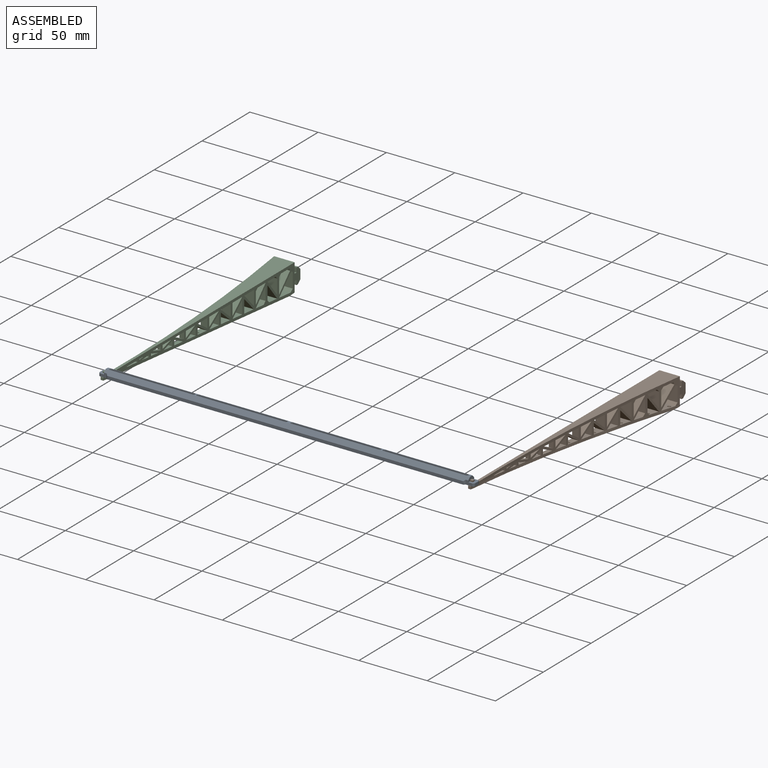
[diagram: assembled view]
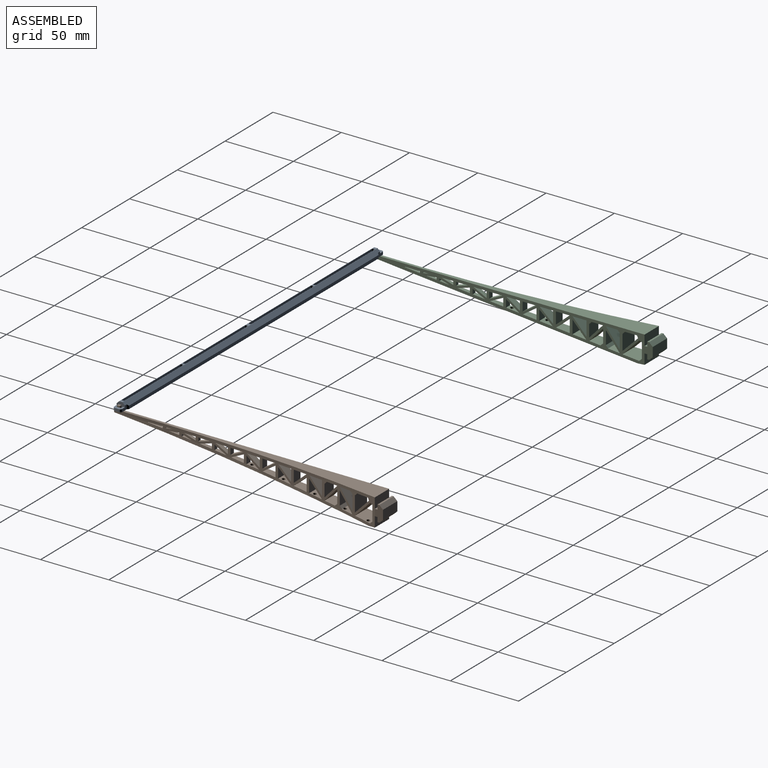
[diagram: assembled view, second angle]
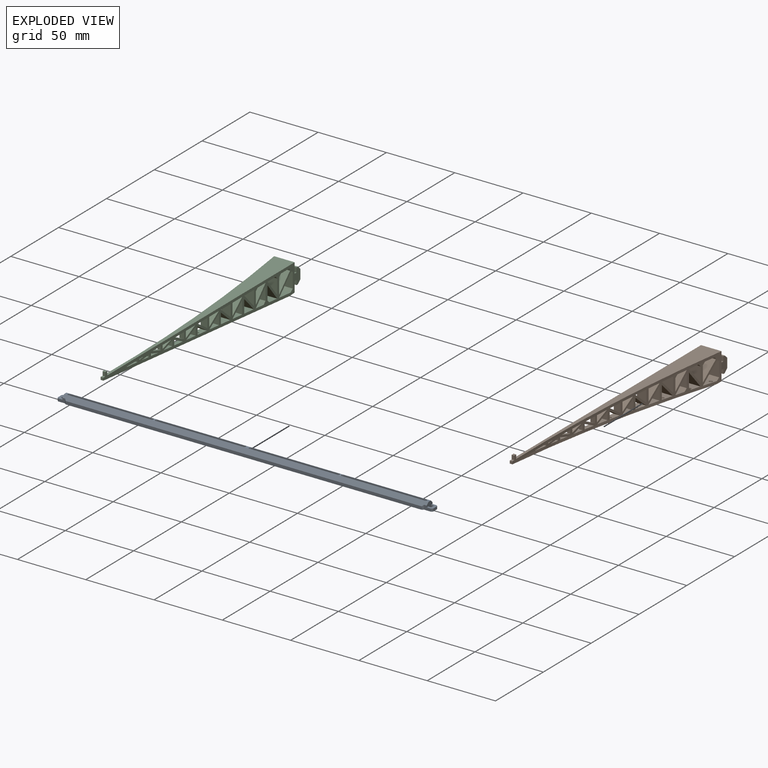
[diagram: exploded view]
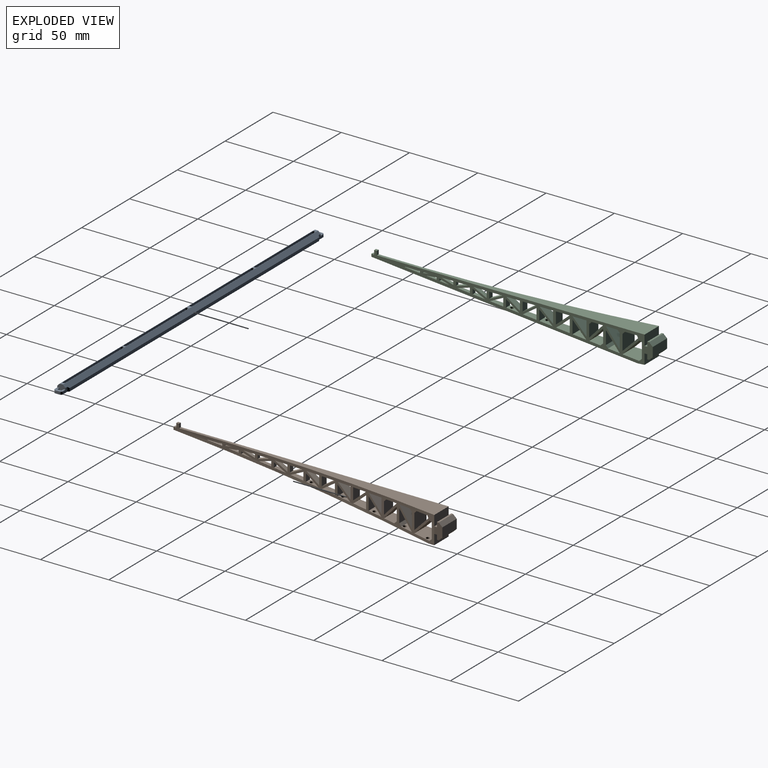
[diagram: exploded view, second angle]
ASSEMBLY  parts=3 mates=2
PART A: 50 faces, bbox 275x7.9x5 mm
  f0: plane 2.1x2mm, normal (0,1,0), area 4.2mm2, adj f1,f41,f43,f44
  f1: plane 3x2mm, normal (1,0,0), area 6mm2, adj f0,f2,f43,f44
  f2: plane 2.1x2mm, normal (0,-1,0), area 4.2mm2, adj f1,f41,f43,f44
  f3: plane 4.6x3.2mm, normal (0,-1,0), area 11.6mm2, adj f6,f8,f25,f41,f43,f44
  f4: plane 4.6x3.2mm, normal (0,1,0), area 11.6mm2, adj f5,f7,f35,f41,f43,f44
  f5: cylinder r=1.5mm len=2mm, axis (0,0,-1), area 4.7mm2, adj f4,f36,f43,f44
  f6: cylinder r=1.5mm len=2mm, axis (0,0,-1), area 4.7mm2, adj f3,f36,f43,f44
  f7: plane 266.8x2.75mm, normal (0,0.71,0.71), area 1031mm2, adj f4,f9,f10,f32,f33,f34,f35,f41
  f8: plane 266.8x2.75mm, normal (0,-0.71,0.71), area 1031mm2, adj f3,f9,f10,f25,f26,f27,f28,f41
  f9: plane 266.8x2.4mm, normal (0,0,1), area 127.9mm2, adj f7,f8,f10,f13,f14,f15,f16,f17
  f10: plane 6x5mm, normal (1,0,0), area 20.8mm2, adj f7,f8,f9,f11,f28,f32,f42,f43
  f11: plane 2.1x2mm, normal (0,-1,0), area 4.2mm2, adj f10,f12,f43,f45
  f12: plane 3x2mm, normal (-1,0,0), area 6mm2, adj f11,f42,f43,f45
  f13: plane 64.31x4.25mm, normal (0,-1,0), area 273.3mm2, adj f9,f14,f37,f49
  f14: cylinder r=1mm len=4.25mm, axis (0,0,-1), area 13.4mm2, adj f9,f13,f15,f49
  f15: plane 64.31x4.25mm, normal (0,1,0), area 273.3mm2, adj f9,f14,f37,f49
  f16: plane 60.65x4.25mm, normal (0,-1,0), area 257.8mm2, adj f9,f17,f38,f48
  f17: cylinder r=1mm len=4.25mm, axis (0,0,-1), area 13.4mm2, adj f9,f16,f18,f48
  f18: plane 60.65x4.25mm, normal (0,1,0), area 257.8mm2, adj f9,f17,f38,f48
  f19: cylinder r=1mm len=4.25mm, axis (0,0,-1), area 13.4mm2, adj f9,f20,f39,f47
  f20: plane 64.31x4.25mm, normal (0,-1,0), area 273.3mm2, adj f9,f19,f21,f47
  f21: cylinder r=1mm len=4.25mm, axis (0,0,-1), area 13.4mm2, adj f9,f20,f39,f47
  f22: plane 60.65x4.25mm, normal (0,1,0), area 257.8mm2, adj f9,f23,f40,f46
  f23: cylinder r=1mm len=4.25mm, axis (0,0,-1), area 13.4mm2, adj f9,f22,f24,f46
  f24: plane 60.65x4.25mm, normal (0,-1,0), area 257.8mm2, adj f9,f23,f40,f46
  f25: plane 3.2x0.95mm, normal (-0.71,-0.71,0), area 3.7mm2, adj f3,f8,f26,f43
  f26: plane 260.9x2.25mm, normal (0,-1,0), area 587mm2, adj f8,f25,f27,f43
  f27: plane 3.2x0.95mm, normal (0.71,-0.71,0), area 3.7mm2, adj f8,f26,f28,f43
  f28: plane 4.6x3.2mm, normal (0,-1,0), area 11.6mm2, adj f8,f10,f27,f29,f43,f45
  f29: cylinder r=1.5mm len=2mm, axis (0,0,-1), area 4.7mm2, adj f28,f30,f43,f45
  f30: plane 3x2mm, normal (1,0,0), area 6mm2, adj f29,f31,f43,f45
  f31: cylinder r=1.5mm len=2mm, axis (0,0,-1), area 4.7mm2, adj f30,f32,f43,f45
  f32: plane 4.6x3.2mm, normal (0,1,0), area 11.6mm2, adj f7,f10,f31,f33,f43,f45
  f33: plane 3.2x0.95mm, normal (0.71,0.71,0), area 3.7mm2, adj f7,f32,f34,f43
  f34: plane 260.9x2.25mm, normal (0,1,0), area 587mm2, adj f7,f33,f35,f43
  f35: plane 3.2x0.95mm, normal (-0.71,0.71,0), area 3.7mm2, adj f4,f7,f34,f43
  f36: plane 3x2mm, normal (-1,0,0), area 6mm2, adj f5,f6,f43,f44
  f37: cylinder r=1mm len=4.25mm, axis (0,0,-1), area 13.4mm2, adj f9,f13,f15,f49
  f38: cylinder r=1mm len=4.25mm, axis (0,0,-1), area 13.4mm2, adj f9,f16,f18,f48
  f39: plane 64.31x4.25mm, normal (0,1,0), area 273.3mm2, adj f9,f19,f21,f47
  f40: cylinder r=1mm len=4.25mm, axis (0,0,-1), area 13.4mm2, adj f9,f22,f24,f46
  f41: plane 6x5mm, normal (-1,0,0), area 20.8mm2, adj f0,f2,f3,f4,f7,f8,f9,f43
  f42: plane 2.1x2mm, normal (0,1,0), area 4.2mm2, adj f10,f12,f43,f45
  f43: plane 275x7.9mm, normal (0,0,-1), area 2133mm2, adj f0,f1,f2,f3,f4,f5,f6,f10
  f44: plane 6x4.1mm, normal (0,0,1), area 17.3mm2, adj f0,f1,f2,f3,f4,f5,f6,f36
  f45: plane 6x4.1mm, normal (0,0,1), area 17.3mm2, adj f10,f11,f12,f28,f29,f30,f31,f32
  f46: plane 62.65x2mm, normal (0,0,1), area 124.4mm2, adj f22,f23,f24,f40
  f47: plane 66.31x2mm, normal (0,0,1), area 131.8mm2, adj f19,f20,f21,f39
  f48: plane 62.65x2mm, normal (0,0,1), area 124.4mm2, adj f16,f17,f18,f38
  f49: plane 66.31x2mm, normal (0,0,1), area 131.8mm2, adj f13,f14,f15,f37
PART B: 120 faces, bbox 23.4x206x15 mm
  f0: plane 2x2mm, normal (0,1,0), area 4mm2, adj f71,f72,f105,f106
  f1: plane 2x1.96mm, normal (1,0,0), area 3.9mm2, adj f57,f73,f105,f106
  f2: plane 11.78x6mm, normal (0,0,1), area 50.2mm2, adj f60,f61,f62,f63,f64,f65,f66,f67
  f3: plane 12.42x8.49mm, normal (1,-0.09,0), area 96.2mm2, adj f4,f105,f106,f109,f115
  f4: plane 12.69x12.42mm, normal (-0.62,0.78,0), area 190.8mm2, adj f3,f104,f105,f106
  f5: plane 10.85x8.34mm, normal (-1,0,0), area 86.2mm2, adj f78,f105,f106,f107
  f6: plane 9.64x8.96mm, normal (0,-1,0), area 86.4mm2, adj f78,f105,f106,f107
  f7: plane 12.69x0.02mm, normal (0,-1,0), area 0.2mm2, adj f8,f79,f105,f106
  f8: plane 14.41x12.18mm, normal (1,-0.09,0), area 160.8mm2, adj f7,f105,f106,f112,f118
  f9: plane 14.7x11.11mm, normal (0,1,0), area 163.3mm2, adj f105,f106,f112,f114
  f10: plane 9.86x5.81mm, normal (-1,0,0), area 53.4mm2, adj f11,f80,f105,f106
  f11: plane 6.75x5.04mm, normal (0,-1,0), area 34mm2, adj f10,f80,f105,f106
  f12: plane 2.06x1.62mm, normal (0,1,0), area 3.3mm2, adj f13,f81,f105,f106
  f13: plane 7.64x2.06mm, normal (-0.99,-0.12,0), area 15.3mm2, adj f12,f81,f105,f106
  f14: plane 10.02x5.84mm, normal (1,-0.09,0), area 54.7mm2, adj f15,f82,f105,f106
  f15: plane 7.8x5.84mm, normal (0,1,0), area 45.5mm2, adj f14,f82,f105,f106
  f16: plane 10.78x9.41mm, normal (0,1,0), area 101.5mm2, adj f17,f83,f105,f106
  f17: plane 10.16x9.41mm, normal (-1,0,0), area 89.9mm2, adj f16,f83,f105,f106
  f18: plane 4.8x1.96mm, normal (-1,0,0), area 9.2mm2, adj f19,f84,f105,f106
  f19: plane 1.89x0.57mm, normal (0,-1,0), area 1.1mm2, adj f18,f84,f105,f106
  f20: plane 7.5x2.3mm, normal (1,-0.09,0), area 16.5mm2, adj f21,f85,f105,f106
  f21: plane 7.5x2.3mm, normal (-0.96,0.29,0), area 17.2mm2, adj f20,f85,f105,f106
  f22: plane 7.72x6mm, normal (0,-1,0), area 46.3mm2, adj f23,f86,f105,f106
  f23: plane 9.91x6.88mm, normal (1,-0.09,0), area 59.1mm2, adj f22,f86,f105,f106,f119
  f24: plane 9.65x6.6mm, normal (-0.83,0.56,0), area 52.9mm2, adj f25,f87,f105,f106
  f25: plane 5.69x4.2mm, normal (0,-1,0), area 23.9mm2, adj f24,f87,f105,f106
  f26: plane 5.76x4.08mm, normal (0,1,0), area 23.5mm2, adj f27,f88,f105,f106
  f27: plane 9.77x4.84mm, normal (-0.9,-0.44,0), area 41.3mm2, adj f26,f88,f105,f106
  f28: plane 10.61x8.2mm, normal (1,-0.09,0), area 83.3mm2, adj f89,f105,f106,f108
  f29: plane 10.85x9.84mm, normal (0,1,0), area 106.8mm2, adj f30,f105,f106,f108
  f30: plane 10.86x10.82mm, normal (-0.69,-0.73,0), area 152.1mm2, adj f29,f89,f105,f106
  f31: plane 4.71x3.39mm, normal (0,1,0), area 15.9mm2, adj f32,f90,f105,f106
  f32: plane 9.5x3.39mm, normal (-1,0,0), area 30mm2, adj f31,f90,f105,f106
  f33: plane 9.86x4.89mm, normal (-1,0,0), area 44.9mm2, adj f34,f91,f105,f106
  f34: plane 9.86x6.75mm, normal (0.83,-0.56,0), area 54.4mm2, adj f33,f91,f105,f106
  f35: plane 14.18x8.81mm, normal (-1,0,0), area 119.5mm2, adj f105,f106,f111,f113
  f36: plane 12.69x11.37mm, normal (0,-1,0), area 144.3mm2, adj f92,f105,f106,f111
  f37: plane 12.42x10.98mm, normal (0,1,0), area 136.4mm2, adj f93,f105,f106,f110
  f38: plane 12.18x8.37mm, normal (-1,0,0), area 97.4mm2, adj f39,f105,f106,f110
  f39: plane 11.1x0.05mm, normal (0,-1,0), area 0.6mm2, adj f38,f93,f105,f106
  f40: plane 10.05x8.08mm, normal (-1,0,0), area 76.1mm2, adj f41,f94,f105,f106
  f41: plane 8.77x7.09mm, normal (0,-1,0), area 62.2mm2, adj f40,f94,f105,f106
  f42: plane 8.77x6.9mm, normal (0,1,0), area 60.5mm2, adj f43,f95,f105,f106
  f43: plane 10.05x6.9mm, normal (-1,0,0), area 64.8mm2, adj f42,f95,f105,f106
  f44: plane 10.68x10.06mm, normal (-0.69,0.73,0), area 129.7mm2, adj f45,f96,f105,f106
  f45: plane 9.73x8.3mm, normal (0,-1,0), area 80.7mm2, adj f44,f96,f105,f106
  f46: plane 9.83x8.09mm, normal (0,1,0), area 79.5mm2, adj f47,f97,f105,f106
  f47: plane 10.16x8.87mm, normal (-0.75,-0.66,0), area 102.3mm2, adj f46,f97,f105,f106
  f48: plane 8.63x2.65mm, normal (0.96,-0.29,0), area 20.3mm2, adj f49,f98,f105,f106
  f49: plane 2.65x2.38mm, normal (0,1,0), area 6.3mm2, adj f48,f98,f105,f106
  f50: plane 11.19x1.86mm, normal (-1,0,0), area 20.3mm2, adj f51,f99,f105,f106
  f51: plane 1.79x0.29mm, normal (0,-1,0), area 0.5mm2, adj f50,f52,f105,f106
  f52: plane 11.19x1.86mm, normal (1,-0.09,0), area 20.4mm2, adj f51,f99,f105,f106
  f53: plane 9.5x4.71mm, normal (0.9,0.44,0), area 39.8mm2, adj f54,f100,f105,f106
  f54: plane 9.5x4.04mm, normal (-1,0,0), area 35.7mm2, adj f53,f100,f105,f106
  f55: plane 8.63x2.76mm, normal (-1,0,0), area 22.4mm2, adj f56,f101,f105,f106
  f56: plane 2.65x2.44mm, normal (0,-1,0), area 6.5mm2, adj f55,f101,f105,f106
  f57: plane 3x1.93mm, normal (0,-1,0), area 5.8mm2, adj f1,f58,f105,f106
  f58: plane 196x15mm, normal (1,0,0), area 1131.9mm2, adj f57,f59,f105,f106
  f59: plane 15x7.55mm, normal (0,-1,0), area 113.3mm2, adj f58,f60,f105,f106
  f60: plane 15x2mm, normal (1,0,0), area 30mm2, adj f2,f59,f61,f105
  f61: plane 15x3.44mm, normal (0,1,0), area 51.6mm2, adj f2,f60,f62,f105
  f62: plane 15x1.3mm, normal (1,0,0), area 19.5mm2, adj f2,f61,f63,f105
  f63: plane 15x2.7mm, normal (0.74,-0.68,0), area 55.1mm2, adj f2,f62,f64,f105
  f64: plane 15x6.8mm, normal (0,-1,0), area 102mm2, adj f2,f63,f65,f105
  f65: plane 15x2.7mm, normal (-0.74,-0.68,0), area 55.1mm2, adj f2,f64,f66,f105
  f66: plane 15x1.3mm, normal (-1,0,0), area 19.5mm2, adj f2,f65,f67,f105
  f67: plane 15x3.44mm, normal (0,1,0), area 51.6mm2, adj f2,f66,f68,f105
  f68: plane 15x2mm, normal (-1,0,0), area 30mm2, adj f2,f67,f69,f105
  f69: plane 15x7.55mm, normal (0,-1,0), area 113.3mm2, adj f68,f70,f105,f106
  f70: plane 15x4.98mm, normal (-1,-0.08,0), area 73.2mm2, adj f69,f71,f105,f106
  f71: plane 195.02x18.4mm, normal (-1,0.09,0), area 1047mm2, adj f0,f70,f105,f106,f115,f116,f117,f118
  f72: plane 2x2mm, normal (1,0,0), area 4mm2, adj f0,f73,f105,f106
  f73: plane 3x1.96mm, normal (0,1,0), area 5.9mm2, adj f1,f72,f105,f106
  f74: plane 9.1x4.51mm, normal (-0.9,0.44,0), area 31.6mm2, adj f75,f102,f105,f106
  f75: plane 3.65x2.9mm, normal (0,-1,0), area 10.6mm2, adj f74,f102,f105,f106
  f76: plane 3.7x2.82mm, normal (0,1,0), area 10.4mm2, adj f77,f103,f105,f106
  f77: plane 9.23x2.83mm, normal (-0.96,-0.29,0), area 25.5mm2, adj f76,f103,f105,f106
  f78: plane 10.85x10.79mm, normal (0.69,0.73,0), area 151.7mm2, adj f5,f6,f105,f106
  f79: plane 14.45x12.48mm, normal (-0.71,-0.71,0), area 238.6mm2, adj f7,f105,f106,f114
  f80: plane 9.86x6.75mm, normal (0.83,0.56,0), area 64.7mm2, adj f10,f11,f105,f106
  f81: plane 7.64x2.06mm, normal (1,-0.09,0), area 15.2mm2, adj f12,f13,f105,f106
  f82: plane 10.02x6.86mm, normal (-0.83,-0.56,0), area 66mm2, adj f14,f15,f105,f106
  f83: plane 10.79x10.16mm, normal (0.69,-0.73,0), area 131.1mm2, adj f16,f17,f105,f106
  f84: plane 4.8x1.96mm, normal (0.99,0.12,0), area 9.3mm2, adj f18,f19,f105,f106
  f85: plane 2.1x1.59mm, normal (0,-1,0), area 3.3mm2, adj f20,f21,f105,f106
  f86: plane 9.91x8.65mm, normal (-0.75,0.66,0), area 84.6mm2, adj f22,f23,f105,f106
  f87: plane 9.65x4.86mm, normal (1,-0.09,0), area 38.9mm2, adj f24,f25,f105,f106,f117
  f88: plane 9.77x4.08mm, normal (1,-0.09,0), area 37.2mm2, adj f26,f27,f105,f106
  f89: plane 9.64x0.06mm, normal (0,-1,0), area 0.6mm2, adj f28,f30,f105,f106
  f90: plane 9.5x4.71mm, normal (0.9,-0.44,0), area 33.4mm2, adj f31,f32,f105,f106
  f91: plane 6.75x4.89mm, normal (0,1,0), area 33mm2, adj f33,f34,f105,f106
  f92: plane 14.29x11.43mm, normal (0.71,0.71,0), area 217.3mm2, adj f36,f105,f106,f113
  f93: plane 12.76x12.43mm, normal (0.62,-0.78,0), area 191.9mm2, adj f37,f39,f105,f106
  f94: plane 10.05x8.77mm, normal (0.75,0.66,0), area 101mm2, adj f40,f41,f105,f106
  f95: plane 10.05x8.77mm, normal (0.75,-0.66,0), area 86mm2, adj f42,f43,f105,f106
  f96: plane 10.06x9.4mm, normal (1,-0.09,0), area 84.4mm2, adj f44,f45,f105,f106,f116
  f97: plane 10.16x8.09mm, normal (1,-0.09,0), area 77.4mm2, adj f46,f47,f105,f106
  f98: plane 8.63x2.38mm, normal (-1,0,0), area 19.4mm2, adj f48,f49,f105,f106
  f99: plane 1.86x1.35mm, normal (0,1,0), area 2.5mm2, adj f50,f52,f105,f106
  f100: plane 4.71x3.49mm, normal (0,-1,0), area 16.4mm2, adj f53,f54,f105,f106
  f101: plane 8.63x2.76mm, normal (0.96,0.29,0), area 23.4mm2, adj f55,f56,f105,f106
  f102: plane 9.1x3.33mm, normal (1,-0.09,0), area 28.5mm2, adj f74,f75,f105,f106
  f103: plane 9.23x2.82mm, normal (1,-0.09,0), area 24.5mm2, adj f76,f77,f105,f106
  f104: plane 11.1x10.07mm, normal (0,-1,0), area 111.8mm2, adj f4,f105,f106,f109
  f105: plane 206x23.4mm, normal (0,0,-1), area 1352.8mm2, adj f0,f1,f3,f4,f5,f6,f7,f8
  f106: cylinder r=1200mm len=200mm, axis (1,0,0), area 1307.9mm2, adj f0,f1,f2,f3,f4,f5,f6,f7
  f107: plane 9.85x1.82mm, normal (-0.71,-0.71,0), area 25.1mm2, adj f5,f6,f105,f106
  f108: plane 10.85x1.99mm, normal (0.74,0.67,0), area 28.9mm2, adj f28,f29,f105,f106
  f109: plane 11.31x1.81mm, normal (0.67,-0.74,0), area 27.4mm2, adj f3,f104,f105,f106,f115
  f110: plane 12.42x1.82mm, normal (-0.71,0.71,0), area 31.7mm2, adj f37,f38,f105,f106
  f111: plane 12.94x1.82mm, normal (-0.71,-0.71,0), area 33mm2, adj f35,f36,f105,f106
  f112: plane 14.7x1.99mm, normal (0.74,0.67,0), area 39.2mm2, adj f8,f9,f105,f106
  f113: plane 14.29x1.76mm, normal (-0.38,0.92,0), area 27.1mm2, adj f35,f92,f105,f106
  f114: plane 14.7x1.76mm, normal (-0.92,0.38,0), area 27.8mm2, adj f9,f79,f105,f106
  f115: cylinder r=1.25mm len=2.68mm, axis (-1,0.09,0), area 15.8mm2, adj f3,f71,f109
  f116: cylinder r=1.25mm len=2.68mm, axis (-1,0.09,0), area 15.7mm2, adj f71,f96
  f117: cylinder r=1.25mm len=2.68mm, axis (-1,0.09,0), area 15.7mm2, adj f71,f87
  f118: cylinder r=1.25mm len=2.68mm, axis (-1,0.09,0), area 15.7mm2, adj f8,f71
  f119: cylinder r=1.25mm len=2.68mm, axis (-1,0.09,0), area 15.7mm2, adj f23,f71
PART C: 120 faces, bbox 23.4x206x15 mm
  f0: plane 2x2mm, normal (0,1,0), area 4mm2, adj f71,f72,f105,f106
  f1: plane 2x1.96mm, normal (-1,0,0), area 3.9mm2, adj f57,f73,f105,f106
  f2: plane 11.78x6mm, normal (0,0,1), area 50.2mm2, adj f60,f61,f62,f63,f64,f65,f66,f67
  f3: plane 12.42x8.49mm, normal (-1,-0.09,0), area 96.2mm2, adj f4,f105,f106,f109,f115
  f4: plane 12.69x12.42mm, normal (0.62,0.78,0), area 190.8mm2, adj f3,f104,f105,f106
  f5: plane 10.85x8.34mm, normal (1,0,0), area 86.2mm2, adj f78,f105,f106,f107
  f6: plane 9.64x8.96mm, normal (0,-1,0), area 86.4mm2, adj f78,f105,f106,f107
  f7: plane 12.69x0.02mm, normal (0,-1,0), area 0.2mm2, adj f8,f79,f105,f106
  f8: plane 14.41x12.18mm, normal (-1,-0.09,0), area 160.8mm2, adj f7,f105,f106,f112,f118
  f9: plane 14.7x11.11mm, normal (0,1,0), area 163.3mm2, adj f105,f106,f112,f114
  f10: plane 9.86x5.81mm, normal (1,0,0), area 53.4mm2, adj f11,f80,f105,f106
  f11: plane 6.75x5.04mm, normal (0,-1,0), area 34mm2, adj f10,f80,f105,f106
  f12: plane 2.06x1.62mm, normal (0,1,0), area 3.3mm2, adj f13,f81,f105,f106
  f13: plane 7.64x2.06mm, normal (0.99,-0.12,0), area 15.3mm2, adj f12,f81,f105,f106
  f14: plane 10.02x5.84mm, normal (-1,-0.09,0), area 54.7mm2, adj f15,f82,f105,f106
  f15: plane 7.8x5.84mm, normal (0,1,0), area 45.5mm2, adj f14,f82,f105,f106
  f16: plane 10.78x9.41mm, normal (0,1,0), area 101.5mm2, adj f17,f83,f105,f106
  f17: plane 10.16x9.41mm, normal (1,0,0), area 89.9mm2, adj f16,f83,f105,f106
  f18: plane 4.8x1.96mm, normal (1,0,0), area 9.2mm2, adj f19,f84,f105,f106
  f19: plane 1.89x0.57mm, normal (0,-1,0), area 1.1mm2, adj f18,f84,f105,f106
  f20: plane 7.5x2.3mm, normal (-1,-0.09,0), area 16.5mm2, adj f21,f85,f105,f106
  f21: plane 7.5x2.3mm, normal (0.96,0.29,0), area 17.2mm2, adj f20,f85,f105,f106
  f22: plane 7.72x6mm, normal (0,-1,0), area 46.3mm2, adj f23,f86,f105,f106
  f23: plane 9.91x6.88mm, normal (-1,-0.09,0), area 59.1mm2, adj f22,f86,f105,f106,f119
  f24: plane 9.65x6.6mm, normal (0.83,0.56,0), area 52.9mm2, adj f25,f87,f105,f106
  f25: plane 5.69x4.2mm, normal (0,-1,0), area 23.9mm2, adj f24,f87,f105,f106
  f26: plane 5.76x4.08mm, normal (0,1,0), area 23.5mm2, adj f27,f88,f105,f106
  f27: plane 9.77x4.84mm, normal (0.9,-0.44,0), area 41.3mm2, adj f26,f88,f105,f106
  f28: plane 10.61x8.2mm, normal (-1,-0.09,0), area 83.3mm2, adj f89,f105,f106,f108
  f29: plane 10.85x9.84mm, normal (0,1,0), area 106.8mm2, adj f30,f105,f106,f108
  f30: plane 10.86x10.82mm, normal (0.69,-0.73,0), area 152.1mm2, adj f29,f89,f105,f106
  f31: plane 4.71x3.39mm, normal (0,1,0), area 15.9mm2, adj f32,f90,f105,f106
  f32: plane 9.5x3.39mm, normal (1,0,0), area 30mm2, adj f31,f90,f105,f106
  f33: plane 9.86x4.89mm, normal (1,0,0), area 44.9mm2, adj f34,f91,f105,f106
  f34: plane 9.86x6.75mm, normal (-0.83,-0.56,0), area 54.4mm2, adj f33,f91,f105,f106
  f35: plane 14.18x8.81mm, normal (1,0,0), area 119.5mm2, adj f105,f106,f111,f113
  f36: plane 12.69x11.37mm, normal (0,-1,0), area 144.3mm2, adj f92,f105,f106,f111
  f37: plane 12.42x10.98mm, normal (0,1,0), area 136.4mm2, adj f93,f105,f106,f110
  f38: plane 12.18x8.37mm, normal (1,0,0), area 97.4mm2, adj f39,f105,f106,f110
  f39: plane 11.1x0.05mm, normal (0,-1,0), area 0.6mm2, adj f38,f93,f105,f106
  f40: plane 10.05x8.08mm, normal (1,0,0), area 76.1mm2, adj f41,f94,f105,f106
  f41: plane 8.77x7.09mm, normal (0,-1,0), area 62.2mm2, adj f40,f94,f105,f106
  f42: plane 8.77x6.9mm, normal (0,1,0), area 60.5mm2, adj f43,f95,f105,f106
  f43: plane 10.05x6.9mm, normal (1,0,0), area 64.8mm2, adj f42,f95,f105,f106
  f44: plane 10.68x10.06mm, normal (0.69,0.73,0), area 129.7mm2, adj f45,f96,f105,f106
  f45: plane 9.73x8.3mm, normal (0,-1,0), area 80.7mm2, adj f44,f96,f105,f106
  f46: plane 9.83x8.09mm, normal (0,1,0), area 79.5mm2, adj f47,f97,f105,f106
  f47: plane 10.16x8.87mm, normal (0.75,-0.66,0), area 102.3mm2, adj f46,f97,f105,f106
  f48: plane 8.63x2.65mm, normal (-0.96,-0.29,0), area 20.3mm2, adj f49,f98,f105,f106
  f49: plane 2.65x2.38mm, normal (0,1,0), area 6.3mm2, adj f48,f98,f105,f106
  f50: plane 11.19x1.86mm, normal (1,0,0), area 20.3mm2, adj f51,f99,f105,f106
  f51: plane 1.79x0.29mm, normal (0,-1,0), area 0.5mm2, adj f50,f52,f105,f106
  f52: plane 11.19x1.86mm, normal (-1,-0.09,0), area 20.4mm2, adj f51,f99,f105,f106
  f53: plane 9.5x4.71mm, normal (-0.9,0.44,0), area 39.8mm2, adj f54,f100,f105,f106
  f54: plane 9.5x4.04mm, normal (1,0,0), area 35.7mm2, adj f53,f100,f105,f106
  f55: plane 8.63x2.76mm, normal (1,0,0), area 22.4mm2, adj f56,f101,f105,f106
  f56: plane 2.65x2.44mm, normal (0,-1,0), area 6.5mm2, adj f55,f101,f105,f106
  f57: plane 3x1.93mm, normal (0,-1,0), area 5.8mm2, adj f1,f58,f105,f106
  f58: plane 196x15mm, normal (-1,0,0), area 1131.9mm2, adj f57,f59,f105,f106
  f59: plane 15x7.55mm, normal (0,-1,0), area 113.2mm2, adj f58,f60,f105,f106
  f60: plane 15x2mm, normal (-1,0,0), area 30mm2, adj f2,f59,f61,f105
  f61: plane 15x3.44mm, normal (0,1,0), area 51.6mm2, adj f2,f60,f62,f105
  f62: plane 15x1.3mm, normal (-1,0,0), area 19.5mm2, adj f2,f61,f63,f105
  f63: plane 15x2.7mm, normal (-0.74,-0.68,0), area 55.1mm2, adj f2,f62,f64,f105
  f64: plane 15x6.8mm, normal (0,-1,0), area 102mm2, adj f2,f63,f65,f105
  f65: plane 15x2.7mm, normal (0.74,-0.68,0), area 55.1mm2, adj f2,f64,f66,f105
  f66: plane 15x1.3mm, normal (1,0,0), area 19.5mm2, adj f2,f65,f67,f105
  f67: plane 15x3.44mm, normal (0,1,0), area 51.6mm2, adj f2,f66,f68,f105
  f68: plane 15x2mm, normal (1,0,0), area 30mm2, adj f2,f67,f69,f105
  f69: plane 15x7.55mm, normal (0,-1,0), area 113.2mm2, adj f68,f70,f105,f106
  f70: plane 15x4.98mm, normal (1,-0.08,0), area 73.2mm2, adj f69,f71,f105,f106
  f71: plane 195.02x18.4mm, normal (1,0.09,0), area 1047mm2, adj f0,f70,f105,f106,f115,f116,f117,f118
  f72: plane 2x2mm, normal (-1,0,0), area 4mm2, adj f0,f73,f105,f106
  f73: plane 3x1.96mm, normal (0,1,0), area 5.9mm2, adj f1,f72,f105,f106
  f74: plane 9.1x4.51mm, normal (0.9,0.44,0), area 31.6mm2, adj f75,f102,f105,f106
  f75: plane 3.65x2.9mm, normal (0,-1,0), area 10.6mm2, adj f74,f102,f105,f106
  f76: plane 3.7x2.82mm, normal (0,1,0), area 10.4mm2, adj f77,f103,f105,f106
  f77: plane 9.23x2.83mm, normal (0.96,-0.29,0), area 25.5mm2, adj f76,f103,f105,f106
  f78: plane 10.85x10.79mm, normal (-0.69,0.73,0), area 151.7mm2, adj f5,f6,f105,f106
  f79: plane 14.45x12.48mm, normal (0.71,-0.71,0), area 238.6mm2, adj f7,f105,f106,f114
  f80: plane 9.86x6.75mm, normal (-0.83,0.56,0), area 64.7mm2, adj f10,f11,f105,f106
  f81: plane 7.64x2.06mm, normal (-1,-0.09,0), area 15.2mm2, adj f12,f13,f105,f106
  f82: plane 10.02x6.86mm, normal (0.83,-0.56,0), area 66mm2, adj f14,f15,f105,f106
  f83: plane 10.79x10.16mm, normal (-0.69,-0.73,0), area 131.1mm2, adj f16,f17,f105,f106
  f84: plane 4.8x1.96mm, normal (-0.99,0.12,0), area 9.3mm2, adj f18,f19,f105,f106
  f85: plane 2.1x1.59mm, normal (0,-1,0), area 3.3mm2, adj f20,f21,f105,f106
  f86: plane 9.91x8.65mm, normal (0.75,0.66,0), area 84.6mm2, adj f22,f23,f105,f106
  f87: plane 9.65x4.86mm, normal (-1,-0.09,0), area 38.9mm2, adj f24,f25,f105,f106,f117
  f88: plane 9.77x4.08mm, normal (-1,-0.09,0), area 37.2mm2, adj f26,f27,f105,f106
  f89: plane 9.64x0.06mm, normal (0,-1,0), area 0.6mm2, adj f28,f30,f105,f106
  f90: plane 9.5x4.71mm, normal (-0.9,-0.44,0), area 33.4mm2, adj f31,f32,f105,f106
  f91: plane 6.75x4.89mm, normal (0,1,0), area 33mm2, adj f33,f34,f105,f106
  f92: plane 14.29x11.43mm, normal (-0.71,0.71,0), area 217.3mm2, adj f36,f105,f106,f113
  f93: plane 12.76x12.43mm, normal (-0.62,-0.78,0), area 191.9mm2, adj f37,f39,f105,f106
  f94: plane 10.05x8.77mm, normal (-0.75,0.66,0), area 101mm2, adj f40,f41,f105,f106
  f95: plane 10.05x8.77mm, normal (-0.75,-0.66,0), area 86mm2, adj f42,f43,f105,f106
  f96: plane 10.06x9.4mm, normal (-1,-0.09,0), area 84.4mm2, adj f44,f45,f105,f106,f116
  f97: plane 10.16x8.09mm, normal (-1,-0.09,0), area 77.4mm2, adj f46,f47,f105,f106
  f98: plane 8.63x2.38mm, normal (1,0,0), area 19.4mm2, adj f48,f49,f105,f106
  f99: plane 1.86x1.35mm, normal (0,1,0), area 2.5mm2, adj f50,f52,f105,f106
  f100: plane 4.71x3.49mm, normal (0,-1,0), area 16.4mm2, adj f53,f54,f105,f106
  f101: plane 8.63x2.76mm, normal (-0.96,0.29,0), area 23.4mm2, adj f55,f56,f105,f106
  f102: plane 9.1x3.33mm, normal (-1,-0.09,0), area 28.5mm2, adj f74,f75,f105,f106
  f103: plane 9.23x2.82mm, normal (-1,-0.09,0), area 24.5mm2, adj f76,f77,f105,f106
  f104: plane 11.1x10.07mm, normal (0,-1,0), area 111.8mm2, adj f4,f105,f106,f109
  f105: plane 206x23.4mm, normal (0,0,-1), area 1352.8mm2, adj f0,f1,f3,f4,f5,f6,f7,f8
  f106: cylinder r=1200mm len=200mm, axis (-1,0,0), area 1307.9mm2, adj f0,f1,f2,f3,f4,f5,f6,f7
  f107: plane 9.85x1.82mm, normal (0.71,-0.71,0), area 25.1mm2, adj f5,f6,f105,f106
  f108: plane 10.85x1.99mm, normal (-0.74,0.67,0), area 28.9mm2, adj f28,f29,f105,f106
  f109: plane 11.31x1.81mm, normal (-0.67,-0.74,0), area 27.4mm2, adj f3,f104,f105,f106,f115
  f110: plane 12.42x1.82mm, normal (0.71,0.71,0), area 31.7mm2, adj f37,f38,f105,f106
  f111: plane 12.94x1.82mm, normal (0.71,-0.71,0), area 33mm2, adj f35,f36,f105,f106
  f112: plane 14.7x1.99mm, normal (-0.74,0.67,0), area 39.2mm2, adj f8,f9,f105,f106
  f113: plane 14.29x1.76mm, normal (0.38,0.92,0), area 27.1mm2, adj f35,f92,f105,f106
  f114: plane 14.7x1.76mm, normal (0.92,0.38,0), area 27.8mm2, adj f9,f79,f105,f106
  f115: cylinder r=1.25mm len=2.68mm, axis (1,0.09,0), area 15.8mm2, adj f3,f71,f109
  f116: cylinder r=1.25mm len=2.68mm, axis (1,0.09,0), area 15.7mm2, adj f71,f96
  f117: cylinder r=1.25mm len=2.68mm, axis (1,0.09,0), area 15.7mm2, adj f71,f87
  f118: cylinder r=1.25mm len=2.68mm, axis (1,0.09,0), area 15.7mm2, adj f8,f71
  f119: cylinder r=1.25mm len=2.68mm, axis (1,0.09,0), area 15.7mm2, adj f23,f71
PLACE A rot(axis=(0,0,1),180deg) t=(297.11,-248.18,25.7)mm
PLACE B rot(axis=(0.71,0,0.71),180deg) t=(293.15,-48.58,65.7)mm
PLACE C rot(axis=(-0.71,0,0.71),180deg) t=(26.08,-48.58,15.7)mm
MATE fastened A.f11 <-> C.f73  axis (0,1,0) through (24.11,-252.58,25.7)mm
MATE fastened B.f73 <-> A.f2  axis (0,-1,0) through (295.11,-252.58,25.7)mm
